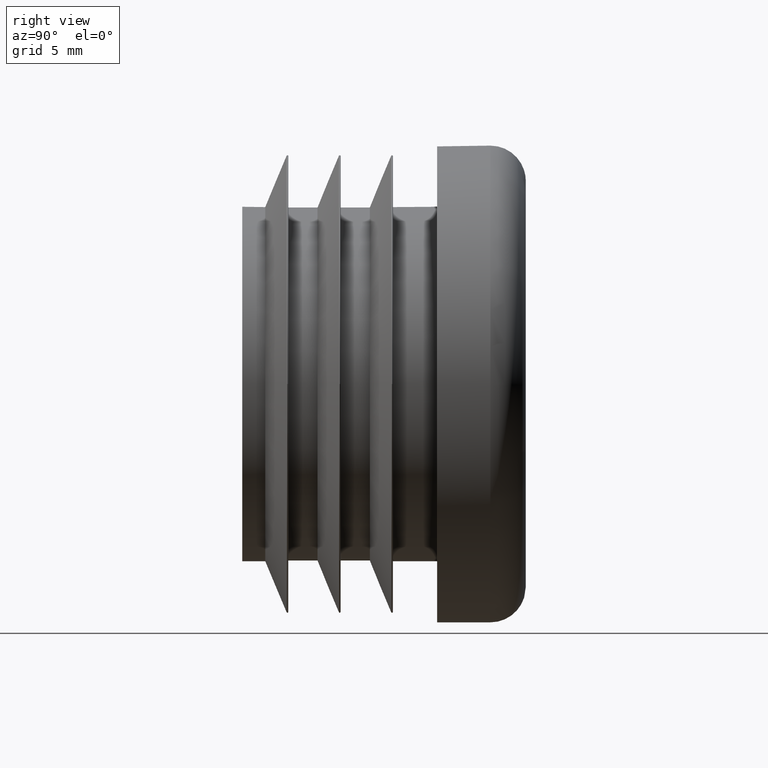
[diagram: clean part render]
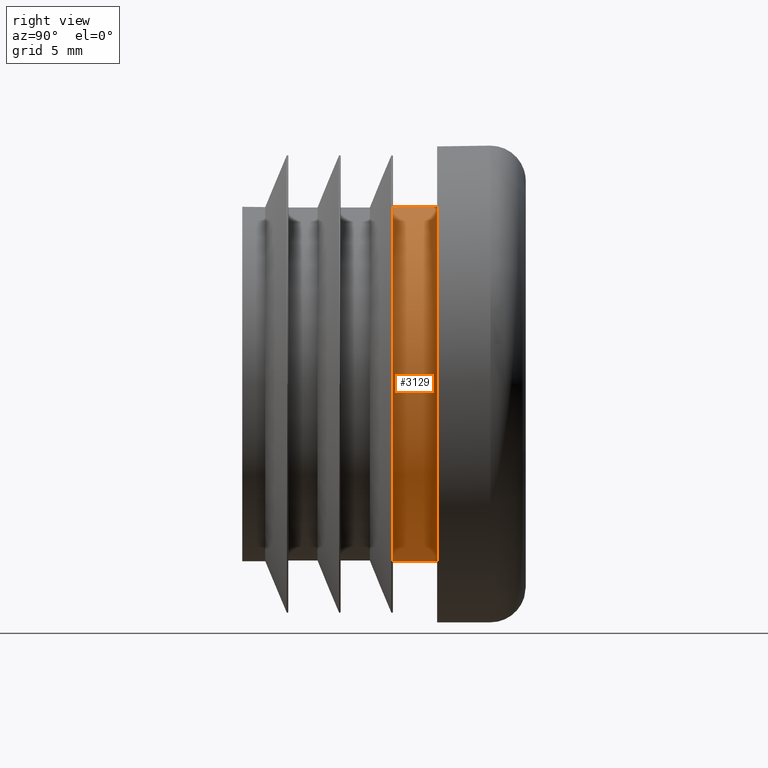
[diagram: same view with one face highlighted and labeled with its STEP entity id]
A machine part, right view. The second image highlights one B-rep face of the part: STEP entity #3129.
In plain terms, the highlighted cylindrical surface (bore or boss wall) has radius 10 mm, axis along (-0, -1, -0).
Its self-contained STEP definition (entity closure, byte-faithful):
#404 = AXIS2_PLACEMENT_3D ( 'NONE', #4906, #2355, #684 ) ;
#545 = VERTEX_POINT ( 'NONE', #6346 ) ;
#612 = CYLINDRICAL_SURFACE ( 'NONE', #4185, 10.00000000000000000 ) ;
#684 = DIRECTION ( 'NONE',  ( 0.000000000000000000, 0.000000000000000000, -1.000000000000000000 ) ) ;
#1156 = ORIENTED_EDGE ( 'NONE', *, *, #9530, .F. ) ;
#2235 = EDGE_CURVE ( 'NONE', #545, #545, #4773, .T. ) ;
#2242 = FACE_OUTER_BOUND ( 'NONE', #2586, .T. ) ;
#2355 = DIRECTION ( 'NONE',  ( -0.000000000000000000, -1.000000000000000000, -0.000000000000000000 ) ) ;
#2586 = EDGE_LOOP ( 'NONE', ( #1156 ) ) ;
#3129 = ADVANCED_FACE ( 'NONE', ( #2242, #9461 ), #612, .T. ) ;
#3431 = VERTEX_POINT ( 'NONE', #3753 ) ;
#3594 = DIRECTION ( 'NONE',  ( -0.000000000000000000, -1.000000000000000000, -0.000000000000000000 ) ) ;
#3753 = CARTESIAN_POINT ( 'NONE',  ( -10.00000000000000000, 8.500000000000039080, 0.000000000000000000 ) ) ;
#3849 = DIRECTION ( 'NONE',  ( 1.047444401652940164E-14, -1.000000000000000000, -0.000000000000000000 ) ) ;
#3958 = CIRCLE ( 'NONE', #10851, 10.00000000000000000 ) ;
#4185 = AXIS2_PLACEMENT_3D ( 'NONE', #8544, #3594, #8652 ) ;
#4773 = CIRCLE ( 'NONE', #404, 9.999999999999998224 ) ;
#4906 = CARTESIAN_POINT ( 'NONE',  ( 0.000000000000000000, 11.00000000000000178, 0.000000000000000000 ) ) ;
#6304 = EDGE_LOOP ( 'NONE', ( #10669 ) ) ;
#6346 = CARTESIAN_POINT ( 'NONE',  ( 0.000000000000000000, 11.00000000000000178, -9.999999999999998224 ) ) ;
#8544 = CARTESIAN_POINT ( 'NONE',  ( 0.000000000000000000, 11.00000000000000000, 0.000000000000000000 ) ) ;
#8652 = DIRECTION ( 'NONE',  ( 0.000000000000000000, 0.000000000000000000, -1.000000000000000000 ) ) ;
#9461 = FACE_OUTER_BOUND ( 'NONE', #6304, .T. ) ;
#9530 = EDGE_CURVE ( 'NONE', #3431, #3431, #3958, .T. ) ;
#9877 = CARTESIAN_POINT ( 'NONE',  ( 0.000000000000000000, 8.500000000000142109, 0.000000000000000000 ) ) ;
#9950 = DIRECTION ( 'NONE',  ( -1.000000000000000000, -1.040834085586084257E-14, 0.000000000000000000 ) ) ;
#10669 = ORIENTED_EDGE ( 'NONE', *, *, #2235, .T. ) ;
#10851 = AXIS2_PLACEMENT_3D ( 'NONE', #9877, #3849, #9950 ) ;